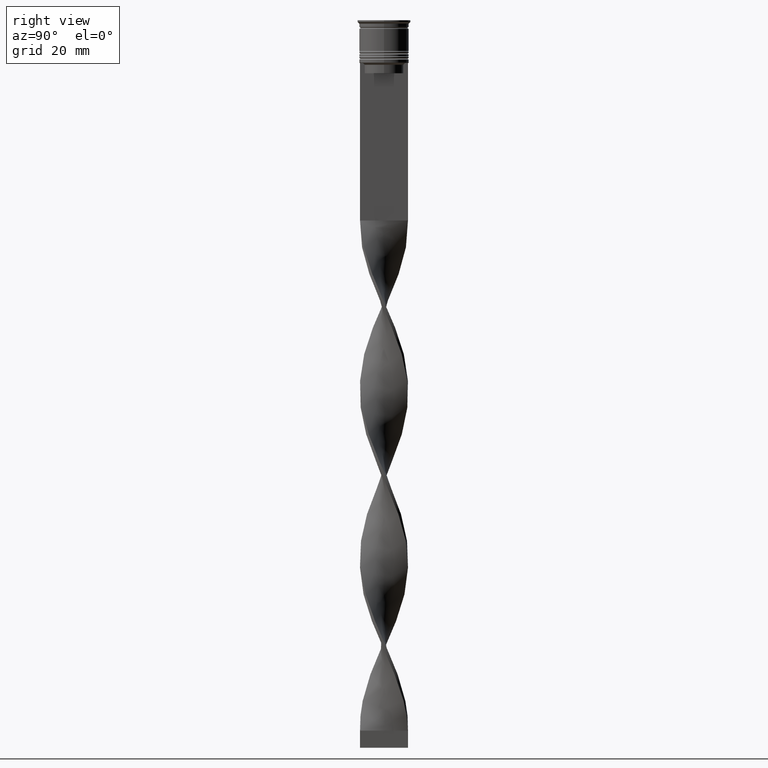
[diagram: clean part render]
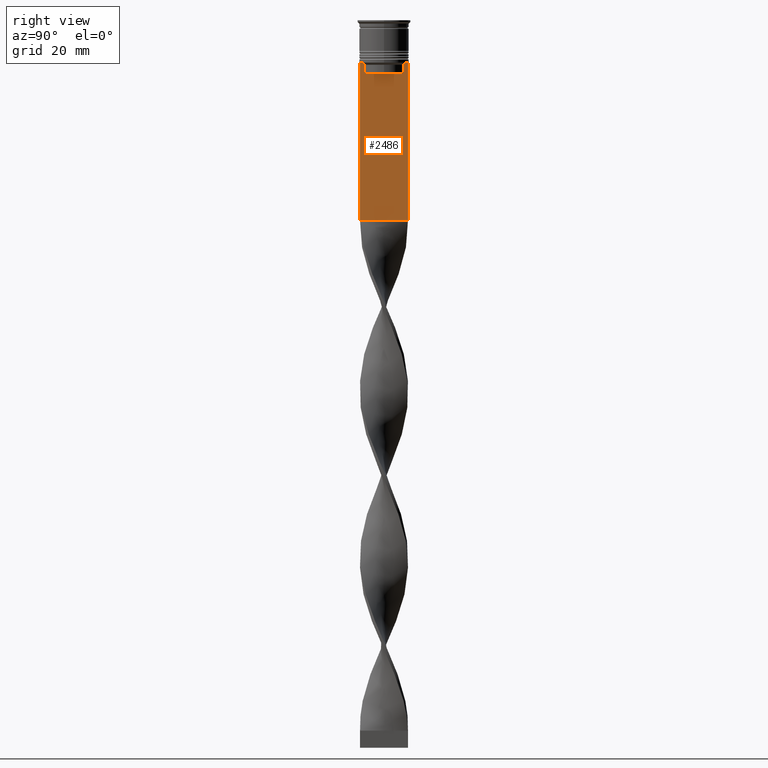
[diagram: same view with one face highlighted and labeled with its STEP entity id]
A machine part, right view. The second image highlights one B-rep face of the part: STEP entity #2486.
In plain terms, the highlighted planar face has unit normal (-1, 0, 0).
Its self-contained STEP definition (entity closure, byte-faithful):
#4 = LINE ( 'NONE', #568, #3199 ) ;
#24 = LINE ( 'NONE', #902, #3338 ) ;
#55 = DIRECTION ( 'NONE',  ( 0.000000000000000000, -1.000000000000000000, 0.000000000000000000 ) ) ;
#168 = CARTESIAN_POINT ( 'NONE',  ( 0.5000000000000000000, 5.795128834036803234, -12.83336016107156574 ) ) ;
#174 = CARTESIAN_POINT ( 'NONE',  ( 0.5000000000000000000, 6.129641098791995368, -12.50000000000000000 ) ) ;
#199 = VECTOR ( 'NONE', #567, 1000.000000000000000 ) ;
#225 = CARTESIAN_POINT ( 'NONE',  ( 0.5000000000000000000, 5.627832620112292794, 0.000000000000000000 ) ) ;
#419 = VECTOR ( 'NONE', #1429, 1000.000000000000000 ) ;
#429 = DIRECTION ( 'NONE',  ( -1.000000000000000000, 0.000000000000000000, 0.000000000000000000 ) ) ;
#455 = CARTESIAN_POINT ( 'NONE',  ( 0.5000000000000000000, 5.627832620112292794, -15.50000000000000000 ) ) ;
#480 = LINE ( 'NONE', #3463, #619 ) ;
#549 = EDGE_CURVE ( 'NONE', #2082, #2448, #4, .T. ) ;
#567 = DIRECTION ( 'NONE',  ( 0.000000000000000000, -1.000000000000000000, 0.000000000000000000 ) ) ;
#568 = CARTESIAN_POINT ( 'NONE',  ( 0.5000000000000000000, 5.649999999999998579, -15.50000000000000000 ) ) ;
#611 = DIRECTION ( 'NONE',  ( -0.000000000000000000, -0.000000000000000000, 1.000000000000000000 ) ) ;
#619 = VECTOR ( 'NONE', #813, 1000.000000000000000 ) ;
#645 = LINE ( 'NONE', #2687, #419 ) ;
#673 = EDGE_CURVE ( 'NONE', #2797, #3011, #645, .T. ) ;
#702 = CARTESIAN_POINT ( 'NONE',  ( 0.5000000000000000000, -6.999999999999997335, 1.535668847618198329 ) ) ;
#813 = DIRECTION ( 'NONE',  ( 0.000000000000000000, -1.000000000000000000, 0.000000000000000000 ) ) ;
#829 = ORIENTED_EDGE ( 'NONE', *, *, #2622, .T. ) ;
#902 = CARTESIAN_POINT ( 'NONE',  ( 0.5000000000000000000, -5.627832620112292794, 0.000000000000000000 ) ) ;
#975 = PLANE ( 'NONE',  #1543 ) ;
#1005 = EDGE_CURVE ( 'NONE', #3456, #2082, #2277, .T. ) ;
#1011 = CARTESIAN_POINT ( 'NONE',  ( 0.5000000000000000000, 5.962396146966409738, -12.66669130573587054 ) ) ;
#1028 = CARTESIAN_POINT ( 'NONE',  ( 0.5000000000000000000, 5.627832620112292794, -13.00000000000000000 ) ) ;
#1078 = ORIENTED_EDGE ( 'NONE', *, *, #673, .T. ) ;
#1084 = ORIENTED_EDGE ( 'NONE', *, *, #549, .T. ) ;
#1196 = CARTESIAN_POINT ( 'NONE',  ( 0.5000000000000000000, -5.627832620112292794, -13.00000000000000000 ) ) ;
#1214 = CARTESIAN_POINT ( 'NONE',  ( 0.5000000000000000000, -6.129641098791995368, -12.50000000000000000 ) ) ;
#1429 = DIRECTION ( 'NONE',  ( 0.000000000000000000, 1.000000000000000000, 0.000000000000000000 ) ) ;
#1470 = CARTESIAN_POINT ( 'NONE',  ( 0.5000000000000000000, -6.999999999999997335, -12.50000000000000000 ) ) ;
#1543 = AXIS2_PLACEMENT_3D ( 'NONE', #702, #429, #1889 ) ;
#1635 = EDGE_CURVE ( 'NONE', #2869, #3313, #480, .T. ) ;
#1699 = ORIENTED_EDGE ( 'NONE', *, *, #2437, .T. ) ;
#1740 = VERTEX_POINT ( 'NONE', #2742 ) ;
#1889 = DIRECTION ( 'NONE',  ( 0.000000000000000000, 0.000000000000000000, 1.000000000000000000 ) ) ;
#1939 = CARTESIAN_POINT ( 'NONE',  ( 0.5000000000000000000, -6.129641098791995368, -12.50000000000000000 ) ) ;
#1999 = LINE ( 'NONE', #1470, #199 ) ;
#2082 = VERTEX_POINT ( 'NONE', #455 ) ;
#2086 = CARTESIAN_POINT ( 'NONE',  ( 0.5000000000000000000, 5.627832620112292794, -13.00000000000000000 ) ) ;
#2089 = DIRECTION ( 'NONE',  ( 0.000000000000000000, 0.000000000000000000, -1.000000000000000000 ) ) ;
#2101 = EDGE_CURVE ( 'NONE', #1740, #3011, #3449, .T. ) ;
#2112 = VECTOR ( 'NONE', #2089, 1000.000000000000000 ) ;
#2162 = FACE_OUTER_BOUND ( 'NONE', #2358, .T. ) ;
#2182 = B_SPLINE_CURVE_WITH_KNOTS ( 'NONE', 3,
 ( #2551, #2531, #2217, #1939 ),
 .UNSPECIFIED., .F., .F.,
 ( 4, 4 ),
 ( 0.02651134470867368836, 0.02721991123504332449 ),
 .UNSPECIFIED. ) ;
#2217 = CARTESIAN_POINT ( 'NONE',  ( 0.5000000000000000000, -5.962396079681185235, -12.66669137279835589 ) ) ;
#2238 = EDGE_CURVE ( 'NONE', #3313, #2797, #2999, .T. ) ;
#2277 = LINE ( 'NONE', #225, #3267 ) ;
#2281 = CARTESIAN_POINT ( 'NONE',  ( 0.5000000000000000000, 7.000000000000002665, -58.50000000000000000 ) ) ;
#2342 = CARTESIAN_POINT ( 'NONE',  ( 0.5000000000000000000, -6.999999999999997335, 1.535668847618198329 ) ) ;
#2358 = EDGE_LOOP ( 'NONE', ( #3207, #829, #3229, #1084, #1699, #3148, #2528, #3248, #1078, #3555 ) ) ;
#2437 = EDGE_CURVE ( 'NONE', #2448, #3210, #24, .T. ) ;
#2448 = VERTEX_POINT ( 'NONE', #3019 ) ;
#2486 = ADVANCED_FACE ( 'NONE', ( #2162 ), #975, .F. ) ;
#2497 = CARTESIAN_POINT ( 'NONE',  ( 0.5000000000000000000, 6.129641098791995368, -12.50000000000000000 ) ) ;
#2528 = ORIENTED_EDGE ( 'NONE', *, *, #1635, .T. ) ;
#2531 = CARTESIAN_POINT ( 'NONE',  ( 0.5000000000000000000, -5.795128760752289665, -12.83336023406855197 ) ) ;
#2551 = CARTESIAN_POINT ( 'NONE',  ( 0.5000000000000000000, -5.627832620112292794, -13.00000000000000000 ) ) ;
#2622 = EDGE_CURVE ( 'NONE', #2886, #3456, #2932, .T. ) ;
#2687 = CARTESIAN_POINT ( 'NONE',  ( 0.5000000000000000000, -6.999999999999997335, -58.50000000000000000 ) ) ;
#2742 = CARTESIAN_POINT ( 'NONE',  ( 0.5000000000000000000, 7.000000000000002665, -12.50000000000000000 ) ) ;
#2797 = VERTEX_POINT ( 'NONE', #3494 ) ;
#2869 = VERTEX_POINT ( 'NONE', #1214 ) ;
#2886 = VERTEX_POINT ( 'NONE', #174 ) ;
#2932 = B_SPLINE_CURVE_WITH_KNOTS ( 'NONE', 3,
 ( #2497, #1011, #168, #1028 ),
 .UNSPECIFIED., .F., .F.,
 ( 4, 4 ),
 ( 0.01045365750109871796, 0.01116204421161398619 ),
 .UNSPECIFIED. ) ;
#2999 = LINE ( 'NONE', #2342, #2112 ) ;
#3011 = VERTEX_POINT ( 'NONE', #2281 ) ;
#3019 = CARTESIAN_POINT ( 'NONE',  ( 0.5000000000000000000, -5.627832620112292794, -15.50000000000000000 ) ) ;
#3148 = ORIENTED_EDGE ( 'NONE', *, *, #3552, .T. ) ;
#3199 = VECTOR ( 'NONE', #55, 1000.000000000000000 ) ;
#3207 = ORIENTED_EDGE ( 'NONE', *, *, #3507, .T. ) ;
#3210 = VERTEX_POINT ( 'NONE', #1196 ) ;
#3229 = ORIENTED_EDGE ( 'NONE', *, *, #1005, .T. ) ;
#3248 = ORIENTED_EDGE ( 'NONE', *, *, #2238, .T. ) ;
#3267 = VECTOR ( 'NONE', #3717, 1000.000000000000000 ) ;
#3278 = VECTOR ( 'NONE', #3430, 1000.000000000000000 ) ;
#3313 = VERTEX_POINT ( 'NONE', #3374 ) ;
#3338 = VECTOR ( 'NONE', #611, 1000.000000000000000 ) ;
#3374 = CARTESIAN_POINT ( 'NONE',  ( 0.5000000000000000000, -6.999999999999997335, -12.50000000000000000 ) ) ;
#3430 = DIRECTION ( 'NONE',  ( 0.000000000000000000, 0.000000000000000000, -1.000000000000000000 ) ) ;
#3449 = LINE ( 'NONE', #3753, #3278 ) ;
#3456 = VERTEX_POINT ( 'NONE', #2086 ) ;
#3463 = CARTESIAN_POINT ( 'NONE',  ( 0.5000000000000000000, -6.999999999999997335, -12.50000000000000000 ) ) ;
#3494 = CARTESIAN_POINT ( 'NONE',  ( 0.5000000000000000000, -6.999999999999997335, -58.50000000000000000 ) ) ;
#3507 = EDGE_CURVE ( 'NONE', #1740, #2886, #1999, .T. ) ;
#3552 = EDGE_CURVE ( 'NONE', #3210, #2869, #2182, .T. ) ;
#3555 = ORIENTED_EDGE ( 'NONE', *, *, #2101, .F. ) ;
#3717 = DIRECTION ( 'NONE',  ( 0.000000000000000000, 0.000000000000000000, -1.000000000000000000 ) ) ;
#3753 = CARTESIAN_POINT ( 'NONE',  ( 0.5000000000000000000, 7.000000000000002665, 1.535668847618198329 ) ) ;